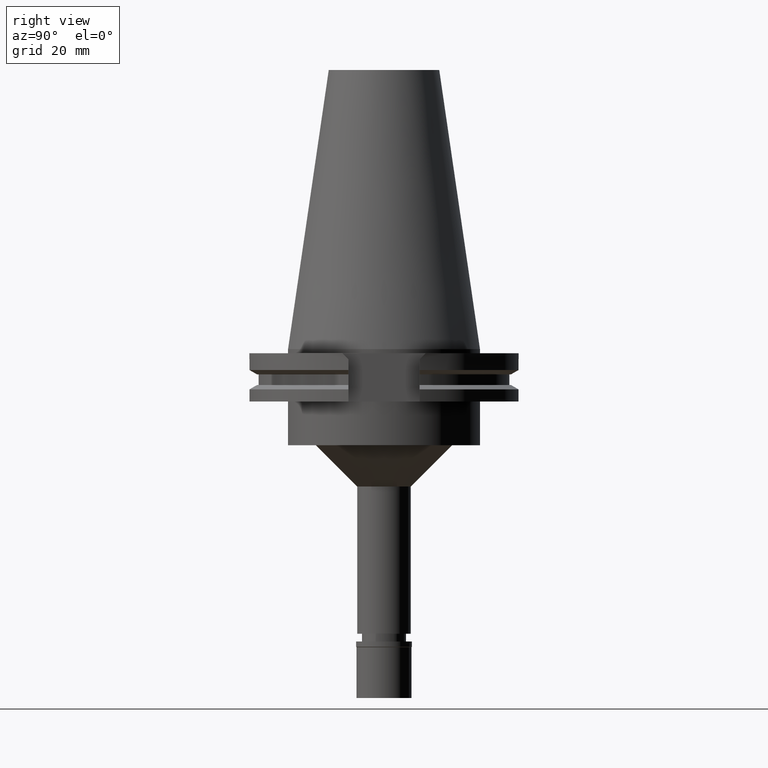
[diagram: clean part render]
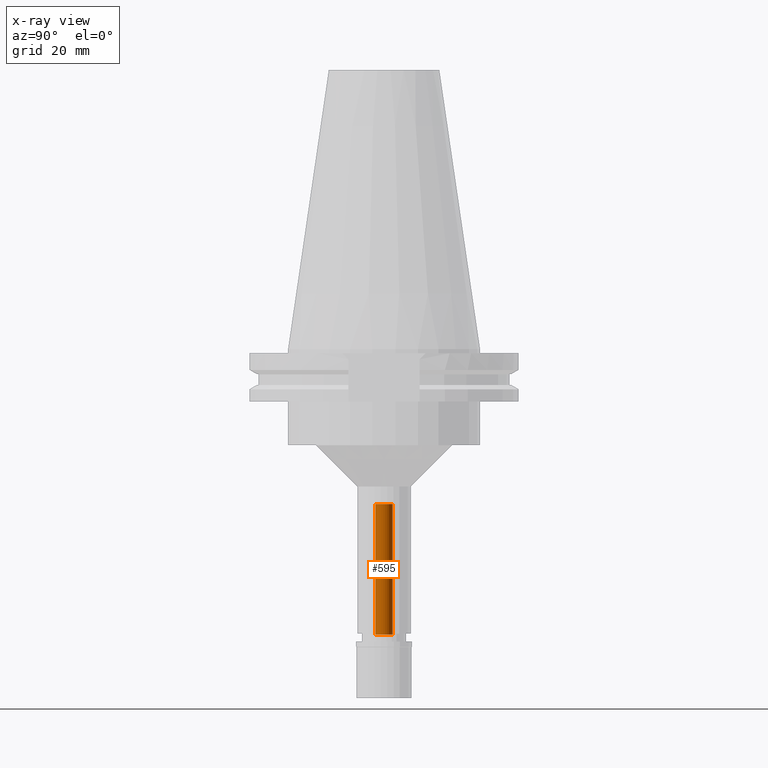
[diagram: x-ray — body ghosted, one internal face saturated and labeled with its STEP entity id]
A machine part, right view, then the same camera in x-ray: the body is ghosted and one INTERNAL B-rep face — a face not visible from any outside direction — is saturated and labeled: STEP entity #595.
In plain terms, the highlighted cylindrical surface (edge-blend (fillet) strip) has radius 3.2 mm, axis along (0, 0, -1).
Its self-contained STEP definition (entity closure, byte-faithful):
#7 = DIRECTION ( 'NONE',  ( 0.0000000000000000000, 0.0000000000000000000, 1.000000000000000000 ) ) ;
#49 = ORIENTED_EDGE ( 'NONE', *, *, #1331, .F. ) ;
#85 = LINE ( 'NONE', #1320, #1751 ) ;
#90 = VERTEX_POINT ( 'NONE', #1689 ) ;
#152 = CARTESIAN_POINT ( 'NONE',  ( 0.0000000000000000000, 3.200000000000000178, -104.0000000000000000 ) ) ;
#266 = AXIS2_PLACEMENT_3D ( 'NONE', #3059, #3007, #980 ) ;
#595 = ADVANCED_FACE ( 'NONE', ( #1992 ), #727, .F. ) ;
#609 = ORIENTED_EDGE ( 'NONE', *, *, #2966, .T. ) ;
#709 = ORIENTED_EDGE ( 'NONE', *, *, #2788, .T. ) ;
#727 = CYLINDRICAL_SURFACE ( 'NONE', #266, 3.200000000000000178 ) ;
#980 = DIRECTION ( 'NONE',  ( 0.0000000000000000000, -1.000000000000000000, 0.0000000000000000000 ) ) ;
#1102 = EDGE_CURVE ( 'NONE', #90, #1293, #3092, .T. ) ;
#1289 = CARTESIAN_POINT ( 'NONE',  ( 0.0000000000000000000, 3.200000000000000178, -104.0000000000000000 ) ) ;
#1293 = VERTEX_POINT ( 'NONE', #1822 ) ;
#1320 = CARTESIAN_POINT ( 'NONE',  ( 0.0000000000000000000, -3.200000000000000178, -104.0000000000000000 ) ) ;
#1324 = AXIS2_PLACEMENT_3D ( 'NONE', #2414, #1652, #2468 ) ;
#1331 = EDGE_CURVE ( 'NONE', #3009, #1293, #3040, .T. ) ;
#1438 = DIRECTION ( 'NONE',  ( 0.0000000000000000000, 1.000000000000000000, 0.0000000000000000000 ) ) ;
#1566 = EDGE_LOOP ( 'NONE', ( #609, #709, #2061, #49 ) ) ;
#1652 = DIRECTION ( 'NONE',  ( 0.0000000000000000000, 0.0000000000000000000, 1.000000000000000000 ) ) ;
#1657 = DIRECTION ( 'NONE',  ( 0.0000000000000000000, 0.0000000000000000000, 1.000000000000000000 ) ) ;
#1689 = CARTESIAN_POINT ( 'NONE',  ( 0.0000000000000000000, -3.200000000000000178, -56.39999999999999858 ) ) ;
#1751 = VECTOR ( 'NONE', #1657, 1000.000000000000000 ) ;
#1822 = CARTESIAN_POINT ( 'NONE',  ( 0.0000000000000000000, 3.200000000000000178, -56.39999999999999858 ) ) ;
#1992 = FACE_OUTER_BOUND ( 'NONE', #1566, .T. ) ;
#2061 = ORIENTED_EDGE ( 'NONE', *, *, #1102, .T. ) ;
#2135 = VERTEX_POINT ( 'NONE', #2941 ) ;
#2171 = CIRCLE ( 'NONE', #2232, 3.200000000000000178 ) ;
#2232 = AXIS2_PLACEMENT_3D ( 'NONE', #2490, #3250, #1438 ) ;
#2414 = CARTESIAN_POINT ( 'NONE',  ( 0.0000000000000000000, 2.603966489026999937E-14, -56.39999999999999858 ) ) ;
#2468 = DIRECTION ( 'NONE',  ( 0.0000000000000000000, -1.000000000000000000, 0.0000000000000000000 ) ) ;
#2490 = CARTESIAN_POINT ( 'NONE',  ( 0.0000000000000000000, 2.603966489026999937E-14, -104.0000000000000000 ) ) ;
#2788 = EDGE_CURVE ( 'NONE', #2135, #90, #85, .T. ) ;
#2941 = CARTESIAN_POINT ( 'NONE',  ( 0.0000000000000000000, -3.200000000000000178, -104.0000000000000000 ) ) ;
#2966 = EDGE_CURVE ( 'NONE', #3009, #2135, #2171, .T. ) ;
#3007 = DIRECTION ( 'NONE',  ( 0.0000000000000000000, 0.0000000000000000000, -1.000000000000000000 ) ) ;
#3009 = VERTEX_POINT ( 'NONE', #152 ) ;
#3040 = LINE ( 'NONE', #1289, #3146 ) ;
#3059 = CARTESIAN_POINT ( 'NONE',  ( 0.0000000000000000000, 2.603966489026999937E-14, 112.6299999999999955 ) ) ;
#3092 = CIRCLE ( 'NONE', #1324, 3.200000000000000178 ) ;
#3146 = VECTOR ( 'NONE', #7, 1000.000000000000000 ) ;
#3250 = DIRECTION ( 'NONE',  ( 0.0000000000000000000, 0.0000000000000000000, -1.000000000000000000 ) ) ;